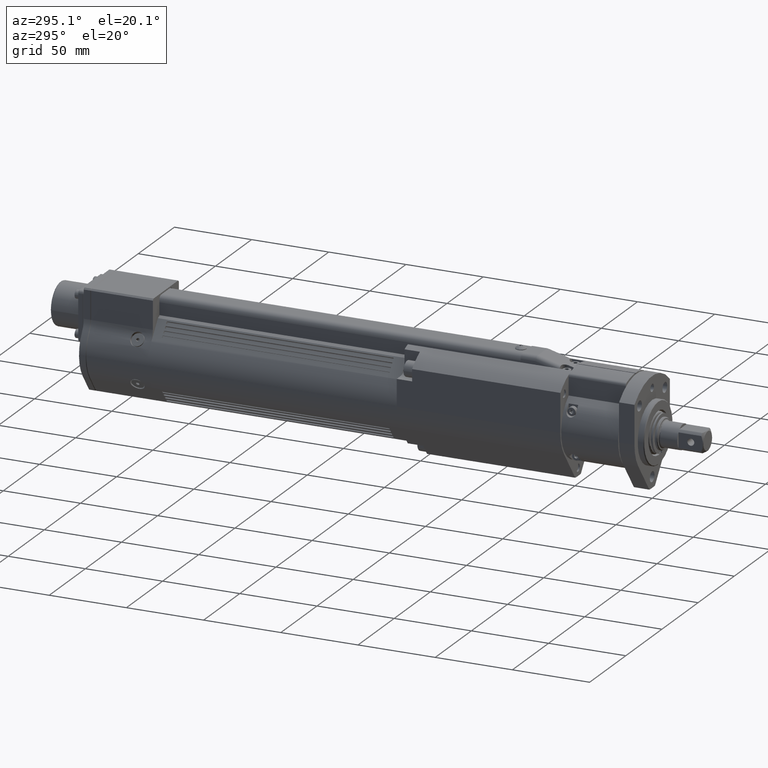
[diagram: clean part render]
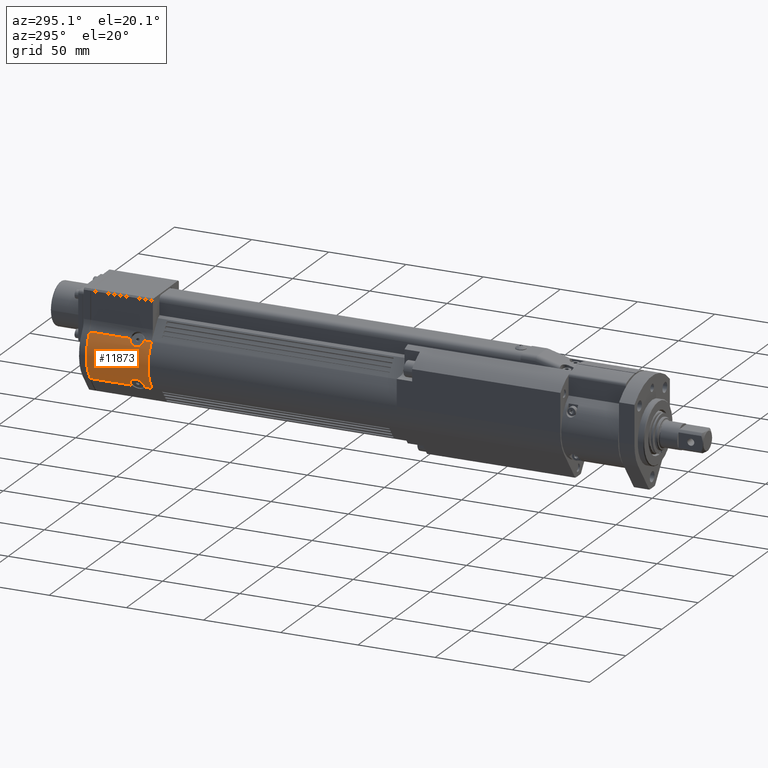
[diagram: same view with one face highlighted and labeled with its STEP entity id]
A machine part, auxiliary view. The second image highlights one B-rep face of the part: STEP entity #11873.
In plain terms, the highlighted cylindrical surface (partial cylindrical patch) has radius 24.5 mm, axis along (-0, -1, -0).
Its self-contained STEP definition (entity closure, byte-faithful):
#205=B_SPLINE_CURVE_WITH_KNOTS('',3,(#18529,#18530,#18531,#18532,#18533,
#18534,#18535,#18536,#18537,#18538,#18539,#18540,#18541,#18542),
 .UNSPECIFIED.,.F.,.F.,(4,2,2,2,2,2,4),(0.,0.169927801341653,0.339855602683307,
0.509776671473127,0.679697740262946,0.849618809052767,0.858098791871753),
 .UNSPECIFIED.);
#206=B_SPLINE_CURVE_WITH_KNOTS('',3,(#18546,#18547,#18548,#18549,#18550,
#18551,#18552,#18553,#18554,#18555,#18556,#18557,#18558,#18559),
 .UNSPECIFIED.,.F.,.F.,(4,2,2,2,2,2,4),(-0.858098791871752,-0.849618809052766,
-0.679697740262946,-0.509776671473126,-0.339855602683306,-0.169927801341653,
0.),.UNSPECIFIED.);
#207=B_SPLINE_CURVE_WITH_KNOTS('',3,(#18570,#18571,#18572,#18573,#18574,
#18575,#18576,#18577,#18578,#18579),.UNSPECIFIED.,.F.,.F.,(4,2,2,2,4),(-0.667893724807282,
-0.509776671473126,-0.339855602683307,-0.169927801341653,0.),
 .UNSPECIFIED.);
#208=B_SPLINE_CURVE_WITH_KNOTS('',3,(#18581,#18582,#18583,#18584,#18585,
#18586,#18587,#18588,#18589,#18590),.UNSPECIFIED.,.F.,.F.,(4,2,2,2,4),(0.,
0.169927801341653,0.339855602683306,0.509776671473125,0.66789372480728),
 .UNSPECIFIED.);
#1232=LINE('',#18563,#2267);
#1233=LINE('',#18568,#2268);
#1234=LINE('',#18592,#2269);
#1235=LINE('',#18595,#2270);
#2267=VECTOR('',#14912,10.);
#2268=VECTOR('',#14917,10.);
#2269=VECTOR('',#14918,10.);
#2270=VECTOR('',#14921,10.);
#2927=CYLINDRICAL_SURFACE('',#12820,24.5);
#3280=FACE_OUTER_BOUND('',#3992,.T.);
#3992=EDGE_LOOP('',(#8938,#8939,#8940,#8941,#8942,#8943,#8944,#8945,#8946,
#8947,#8948));
#4717=CIRCLE('',#12821,24.5);
#4718=CIRCLE('',#12822,24.5000000000046);
#4719=CIRCLE('',#12823,24.5);
#5413=VERTEX_POINT('',#18449);
#5438=VERTEX_POINT('',#18525);
#5439=VERTEX_POINT('',#18526);
#5440=VERTEX_POINT('',#18528);
#5442=VERTEX_POINT('',#18562);
#5443=VERTEX_POINT('',#18564);
#5444=VERTEX_POINT('',#18567);
#5445=VERTEX_POINT('',#18569);
#5446=VERTEX_POINT('',#18580);
#5447=VERTEX_POINT('',#18591);
#5448=VERTEX_POINT('',#18593);
#6738=EDGE_CURVE('',#5440,#5438,#205,.T.);
#6741=EDGE_CURVE('',#5439,#5440,#206,.T.);
#6742=EDGE_CURVE('',#5438,#5442,#1232,.T.);
#6743=EDGE_CURVE('',#5443,#5442,#4717,.T.);
#6744=EDGE_CURVE('',#5443,#5413,#4718,.T.);
#6745=EDGE_CURVE('',#5444,#5413,#1233,.T.);
#6746=EDGE_CURVE('',#5444,#5445,#207,.T.);
#6747=EDGE_CURVE('',#5445,#5446,#208,.T.);
#6748=EDGE_CURVE('',#5447,#5446,#1234,.T.);
#6749=EDGE_CURVE('',#5447,#5448,#4719,.T.);
#6750=EDGE_CURVE('',#5448,#5439,#1235,.T.);
#8938=ORIENTED_EDGE('',*,*,#6741,.T.);
#8939=ORIENTED_EDGE('',*,*,#6738,.T.);
#8940=ORIENTED_EDGE('',*,*,#6742,.T.);
#8941=ORIENTED_EDGE('',*,*,#6743,.F.);
#8942=ORIENTED_EDGE('',*,*,#6744,.T.);
#8943=ORIENTED_EDGE('',*,*,#6745,.F.);
#8944=ORIENTED_EDGE('',*,*,#6746,.T.);
#8945=ORIENTED_EDGE('',*,*,#6747,.T.);
#8946=ORIENTED_EDGE('',*,*,#6748,.F.);
#8947=ORIENTED_EDGE('',*,*,#6749,.T.);
#8948=ORIENTED_EDGE('',*,*,#6750,.T.);
#11873=ADVANCED_FACE('',(#3280),#2927,.T.);
#12820=AXIS2_PLACEMENT_3D('',#18561,#14910,#14911);
#12821=AXIS2_PLACEMENT_3D('',#18565,#14913,#14914);
#12822=AXIS2_PLACEMENT_3D('',#18566,#14915,#14916);
#12823=AXIS2_PLACEMENT_3D('',#18594,#14919,#14920);
#14910=DIRECTION('center_axis',(-2.38745161435384E-16,-1.,-7.29172631243308E-18));
#14911=DIRECTION('ref_axis',(-0.82191780822294,1.92075487976545E-16,0.569606106468319));
#14912=DIRECTION('',(-2.38745161435384E-16,-1.,-7.29172631243308E-18));
#14913=DIRECTION('center_axis',(-2.21945204084769E-16,-1.,-7.29172631221787E-18));
#14914=DIRECTION('ref_axis',(-0.82191780822294,1.92075487976545E-16,0.569606106468319));
#14915=DIRECTION('center_axis',(2.21945204084769E-16,1.,7.29172631221787E-18));
#14916=DIRECTION('ref_axis',(-0.788010753602872,1.79384442508469E-16,-0.615661475330586));
#14917=DIRECTION('',(-2.38745161435384E-16,-1.,-7.29172631243308E-18));
#14918=DIRECTION('',(-2.38745161435384E-16,-1.,-7.29172631243308E-18));
#14919=DIRECTION('center_axis',(-2.38745161435384E-16,-1.,-7.29172631243308E-18));
#14920=DIRECTION('ref_axis',(-0.82191780822294,1.92075487976545E-16,0.569606106468319));
#14921=DIRECTION('',(-2.38745161435384E-16,-1.,-7.29172631243308E-18));
#18449=CARTESIAN_POINT('',(-20.1369863014679,315.,13.9553496084682));
#18525=CARTESIAN_POINT('',(-18.9784477683322,319.878511605099,-15.4941447103441));
#18526=CARTESIAN_POINT('',(-18.9784477683322,328.121488394901,-15.4941447103441));
#18528=CARTESIAN_POINT('',(-22.3088875949526,324.,-10.127365613828));
#18529=CARTESIAN_POINT('Ctrl Pts',(-22.3088875949526,324.,-10.127365613828));
#18530=CARTESIAN_POINT('Ctrl Pts',(-22.3088875949526,323.433573995528,-10.127365613828));
#18531=CARTESIAN_POINT('Ctrl Pts',(-22.2618717045145,322.830295403982,-10.2329590146628));
#18532=CARTESIAN_POINT('Ctrl Pts',(-22.0630549807492,321.721983283822,-10.6548573946107));
#18533=CARTESIAN_POINT('Ctrl Pts',(-21.9103104677486,321.216836144186,-10.9704183556452));
#18534=CARTESIAN_POINT('Ctrl Pts',(-21.5383983037282,320.419218626279,-11.6837138522586));
#18535=CARTESIAN_POINT('Ctrl Pts',(-21.2940866901815,320.073103179328,-12.1293240473951));
#18536=CARTESIAN_POINT('Ctrl Pts',(-20.72241123892,319.613458683846,-13.0820603210874));
#18537=CARTESIAN_POINT('Ctrl Pts',(-20.3941008219878,319.5,-13.5886520545178));
#18538=CARTESIAN_POINT('Ctrl Pts',(-19.7443493479989,319.5,-14.5165933269598));
#18539=CARTESIAN_POINT('Ctrl Pts',(-19.3805976101913,319.613458683846,-14.9983687803487));
#18540=CARTESIAN_POINT('Ctrl Pts',(-19.0132594692897,319.854750308081,-15.4514314227718));
#18541=CARTESIAN_POINT('Ctrl Pts',(-18.9958331030613,319.866495204255,-15.4728497842117));
#18542=CARTESIAN_POINT('Ctrl Pts',(-18.9784477683322,319.878511605099,-15.4941447103441));
#18546=CARTESIAN_POINT('Ctrl Pts',(-18.9784477683322,328.121488394901,-15.4941447103441));
#18547=CARTESIAN_POINT('Ctrl Pts',(-18.9958331030613,328.133504795744,-15.4728497842117));
#18548=CARTESIAN_POINT('Ctrl Pts',(-19.0132594692897,328.145249691918,-15.4514314227718));
#18549=CARTESIAN_POINT('Ctrl Pts',(-19.3805976101913,328.386541316153,-14.9983687803487));
#18550=CARTESIAN_POINT('Ctrl Pts',(-19.7443493479989,328.5,-14.5165933269598));
#18551=CARTESIAN_POINT('Ctrl Pts',(-20.3941008219878,328.5,-13.5886520545178));
#18552=CARTESIAN_POINT('Ctrl Pts',(-20.72241123892,328.386541316153,-13.0820603210874));
#18553=CARTESIAN_POINT('Ctrl Pts',(-21.2940866901815,327.926896820672,-12.1293240473951));
#18554=CARTESIAN_POINT('Ctrl Pts',(-21.5383983037282,327.58078137372,-11.6837138522586));
#18555=CARTESIAN_POINT('Ctrl Pts',(-21.9103104677485,326.783163855813,-10.9704183556452));
#18556=CARTESIAN_POINT('Ctrl Pts',(-22.0630549807492,326.278016716178,-10.6548573946107));
#18557=CARTESIAN_POINT('Ctrl Pts',(-22.2618717045145,325.169704596017,-10.2329590146628));
#18558=CARTESIAN_POINT('Ctrl Pts',(-22.3088875949526,324.566426004472,-10.127365613828));
#18559=CARTESIAN_POINT('Ctrl Pts',(-22.3088875949526,324.,-10.127365613828));
#18561=CARTESIAN_POINT('Origin',(-5.87827129758489E-12,355.,-5.59998782100225E-12));
#18562=CARTESIAN_POINT('',(-18.9784477683322,315.,-15.4941447103441));
#18563=CARTESIAN_POINT('',(-18.9784477683322,355.,-15.4941447103441));
#18564=CARTESIAN_POINT('',(-19.3062634632757,315.,-15.0837061456147));
#18565=CARTESIAN_POINT('Origin',(-5.88782110404231E-12,315.,-5.60027949005475E-12));
#18566=CARTESIAN_POINT('Origin',(-1.68961215313616E-12,315.,-1.24752048708863E-11));
#18567=CARTESIAN_POINT('',(-20.1369863014679,319.501561776867,13.9553496084682));
#18568=CARTESIAN_POINT('',(-20.1369863014679,355.,13.9553496084682));
#18569=CARTESIAN_POINT('',(-22.3088875950864,324.,10.1273656135221));
#18570=CARTESIAN_POINT('Ctrl Pts',(-20.1369863014679,319.501561776867,13.9553496084682));
#18571=CARTESIAN_POINT('Ctrl Pts',(-20.439711755427,319.515567338221,13.5185294290744));
#18572=CARTESIAN_POINT('Ctrl Pts',(-20.742267711013,319.629423892774,13.0489681510674));
#18573=CARTESIAN_POINT('Ctrl Pts',(-21.2940866903417,320.073103179328,12.1293240471026));
#18574=CARTESIAN_POINT('Ctrl Pts',(-21.5383983038825,320.419218626279,11.6837138519629));
#18575=CARTESIAN_POINT('Ctrl Pts',(-21.9103104678935,321.216836144186,10.9704183553445));
#18576=CARTESIAN_POINT('Ctrl Pts',(-22.0630549808899,321.721983283822,10.6548573943081));
#18577=CARTESIAN_POINT('Ctrl Pts',(-22.2618717046496,322.830295403982,10.2329590143575));
#18578=CARTESIAN_POINT('Ctrl Pts',(-22.3088875950864,323.433573995528,10.1273656135221));
#18579=CARTESIAN_POINT('Ctrl Pts',(-22.3088875950864,324.,10.1273656135221));
#18580=CARTESIAN_POINT('',(-20.1369863014679,328.498438223133,13.9553496084682));
#18581=CARTESIAN_POINT('Ctrl Pts',(-22.3088875950864,324.,10.1273656135221));
#18582=CARTESIAN_POINT('Ctrl Pts',(-22.3088875950864,324.566426004472,10.1273656135221));
#18583=CARTESIAN_POINT('Ctrl Pts',(-22.2618717046496,325.169704596017,10.2329590143575));
#18584=CARTESIAN_POINT('Ctrl Pts',(-22.0630549808899,326.278016716178,10.6548573943081));
#18585=CARTESIAN_POINT('Ctrl Pts',(-21.9103104678935,326.783163855813,10.9704183553445));
#18586=CARTESIAN_POINT('Ctrl Pts',(-21.5383983038825,327.58078137372,11.6837138519629));
#18587=CARTESIAN_POINT('Ctrl Pts',(-21.2940866903417,327.926896820672,12.1293240471026));
#18588=CARTESIAN_POINT('Ctrl Pts',(-20.742267711013,328.370576107226,13.0489681510674));
#18589=CARTESIAN_POINT('Ctrl Pts',(-20.439711755427,328.484432661778,13.5185294290744));
#18590=CARTESIAN_POINT('Ctrl Pts',(-20.1369863014679,328.498438223133,13.9553496084682));
#18591=CARTESIAN_POINT('',(-20.1369863014679,355.,13.9553496084682));
#18592=CARTESIAN_POINT('',(-20.1369863014679,355.,13.9553496084682));
#18593=CARTESIAN_POINT('',(-18.9784477683322,355.,-15.4941447103441));
#18594=CARTESIAN_POINT('Origin',(-5.87827129758489E-12,355.,-5.59998782100225E-12));
#18595=CARTESIAN_POINT('',(-18.9784477683322,355.,-15.4941447103441));